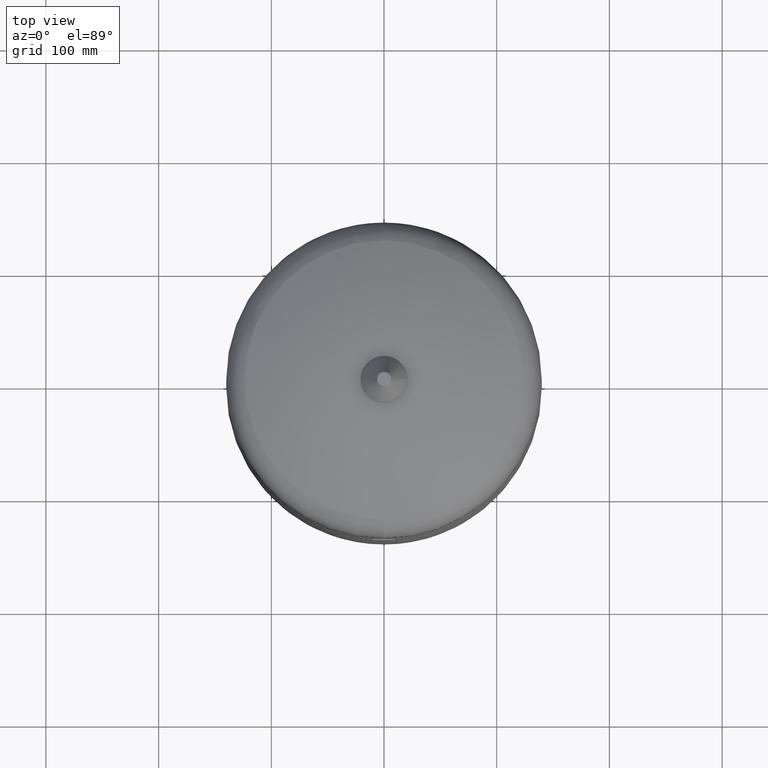
[diagram: clean part render]
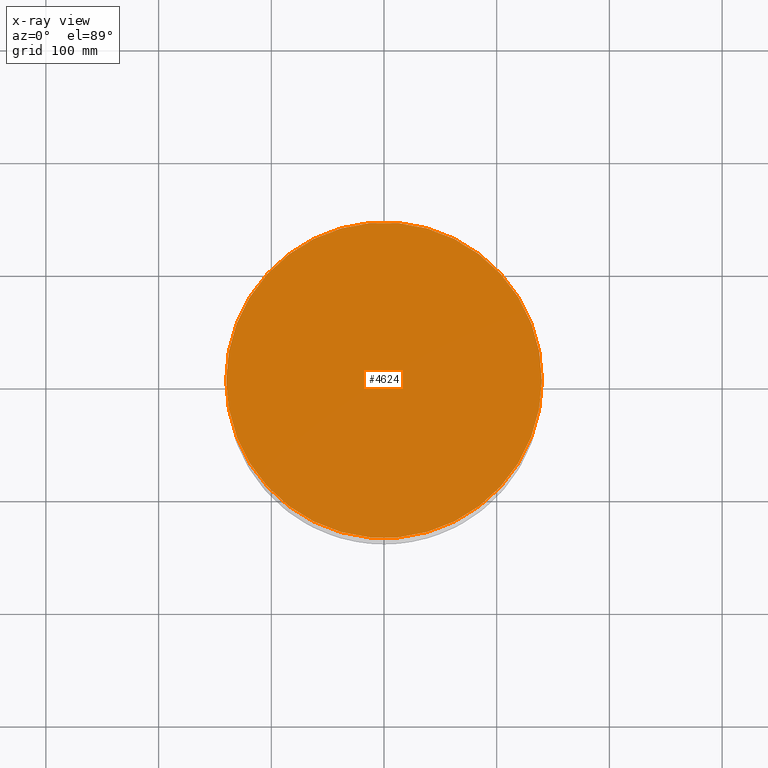
[diagram: x-ray — body ghosted, one internal face saturated and labeled with its STEP entity id]
A machine part, top view, then the same camera in x-ray: the body is ghosted and one INTERNAL B-rep face — a face not visible from any outside direction — is saturated and labeled: STEP entity #4624.
In plain terms, the highlighted planar face has unit normal (0, 0, -1).
Its self-contained STEP definition (entity closure, byte-faithful):
#4462=CARTESIAN_POINT('',(-139.999999999999970,8.701639E-030,432.999999999999940));
#4463=VERTEX_POINT('',#4462);
#4472=CARTESIAN_POINT('',(140.0,-1.714449E-014,433.0));
#4473=VERTEX_POINT('',#4472);
#4474=CARTESIAN_POINT('',(0.0,0.0,433.0));
#4475=DIRECTION('',(0.0,0.0,-1.0));
#4476=DIRECTION('',(-1.0,0.0,0.0));
#4477=AXIS2_PLACEMENT_3D('',#4474,#4475,#4476);
#4478=CIRCLE('',#4477,140.0);
#4479=EDGE_CURVE('',#4473,#4463,#4478,.T.);
#4605=CARTESIAN_POINT('',(0.0,0.0,433.0));
#4606=DIRECTION('',(0.0,0.0,-1.0));
#4607=DIRECTION('',(-1.0,0.0,0.0));
#4608=AXIS2_PLACEMENT_3D('',#4605,#4606,#4607);
#4609=CIRCLE('',#4608,140.0);
#4610=EDGE_CURVE('',#4463,#4473,#4609,.T.);
#4615=CARTESIAN_POINT('',(-70.0,1.087705E-029,432.999999999999940));
#4616=DIRECTION('',(0.0,0.0,-1.0));
#4617=DIRECTION('',(0.0,1.0,0.0));
#4618=AXIS2_PLACEMENT_3D('',#4615,#4616,#4617);
#4619=PLANE('',#4618);
#4620=ORIENTED_EDGE('',*,*,#4610,.T.);
#4621=ORIENTED_EDGE('',*,*,#4479,.T.);
#4622=EDGE_LOOP('',(#4620,#4621));
#4623=FACE_OUTER_BOUND('',#4622,.T.);
#4624=ADVANCED_FACE('',(#4623),#4619,.T.);